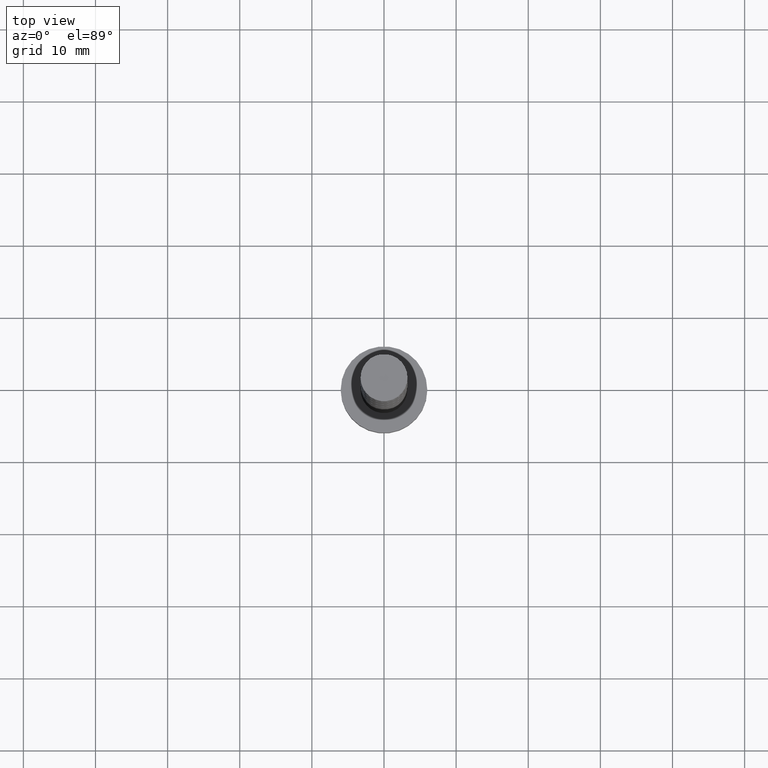
[diagram: clean part render]
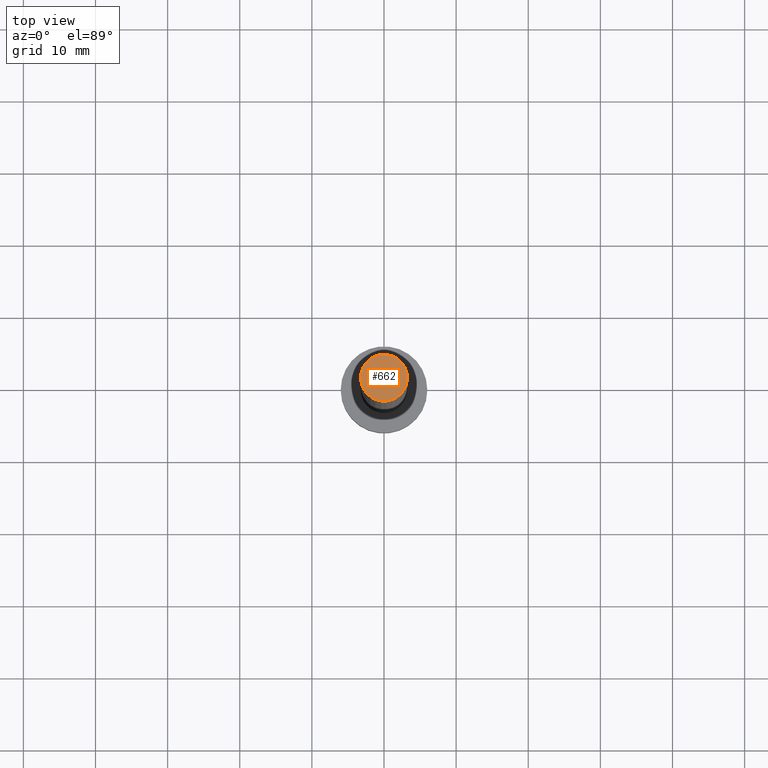
[diagram: same view with one face highlighted and labeled with its STEP entity id]
A machine part, top view. The second image highlights one B-rep face of the part: STEP entity #662.
In plain terms, the highlighted planar face has unit normal (0, 0, 1).
Its self-contained STEP definition (entity closure, byte-faithful):
#4 = DIRECTION ( 'NONE',  ( 0.000000000000000000, 0.000000000000000000, 1.000000000000000000 ) ) ;
#163 = EDGE_CURVE ( 'NONE', #913, #1356, #822, .T. ) ;
#236 = CARTESIAN_POINT ( 'NONE',  ( 0.000000000000000000, 0.000000000000000000, 100.0000000000000000 ) ) ;
#297 = CIRCLE ( 'NONE', #346, 3.250000000000000444 ) ;
#327 = CARTESIAN_POINT ( 'NONE',  ( -3.250000000000000444, 0.000000000000000000, 100.0000000000000000 ) ) ;
#346 = AXIS2_PLACEMENT_3D ( 'NONE', #965, #636, #1441 ) ;
#368 = AXIS2_PLACEMENT_3D ( 'NONE', #590, #606, #1056 ) ;
#399 = EDGE_CURVE ( 'NONE', #1356, #913, #297, .T. ) ;
#443 = EDGE_LOOP ( 'NONE', ( #633, #771 ) ) ;
#449 = DIRECTION ( 'NONE',  ( 1.000000000000000000, 0.000000000000000000, -0.000000000000000000 ) ) ;
#590 = CARTESIAN_POINT ( 'NONE',  ( 0.000000000000000000, 0.000000000000000000, 100.0000000000000000 ) ) ;
#606 = DIRECTION ( 'NONE',  ( 0.000000000000000000, 0.000000000000000000, 1.000000000000000000 ) ) ;
#633 = ORIENTED_EDGE ( 'NONE', *, *, #163, .T. ) ;
#636 = DIRECTION ( 'NONE',  ( 0.000000000000000000, 0.000000000000000000, 1.000000000000000000 ) ) ;
#662 = ADVANCED_FACE ( 'NONE', ( #683 ), #1176, .T. ) ;
#683 = FACE_OUTER_BOUND ( 'NONE', #443, .T. ) ;
#771 = ORIENTED_EDGE ( 'NONE', *, *, #399, .T. ) ;
#822 = CIRCLE ( 'NONE', #368, 3.250000000000000444 ) ;
#913 = VERTEX_POINT ( 'NONE', #327 ) ;
#965 = CARTESIAN_POINT ( 'NONE',  ( 0.000000000000000000, 0.000000000000000000, 100.0000000000000000 ) ) ;
#982 = CARTESIAN_POINT ( 'NONE',  ( 3.250000000000000444, 3.980102097228898231E-16, 100.0000000000000000 ) ) ;
#1056 = DIRECTION ( 'NONE',  ( 1.000000000000000000, 0.000000000000000000, 0.000000000000000000 ) ) ;
#1176 = PLANE ( 'NONE',  #1256 ) ;
#1256 = AXIS2_PLACEMENT_3D ( 'NONE', #236, #4, #449 ) ;
#1356 = VERTEX_POINT ( 'NONE', #982 ) ;
#1441 = DIRECTION ( 'NONE',  ( 1.000000000000000000, 0.000000000000000000, 0.000000000000000000 ) ) ;